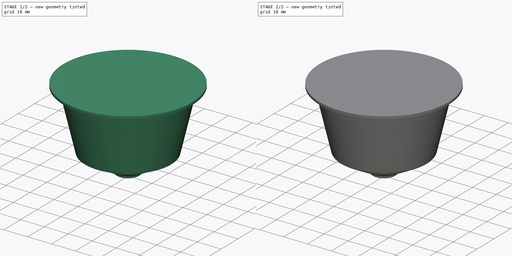
[diagram: build sequence overview — one tinted view per stage of 2, left to right]
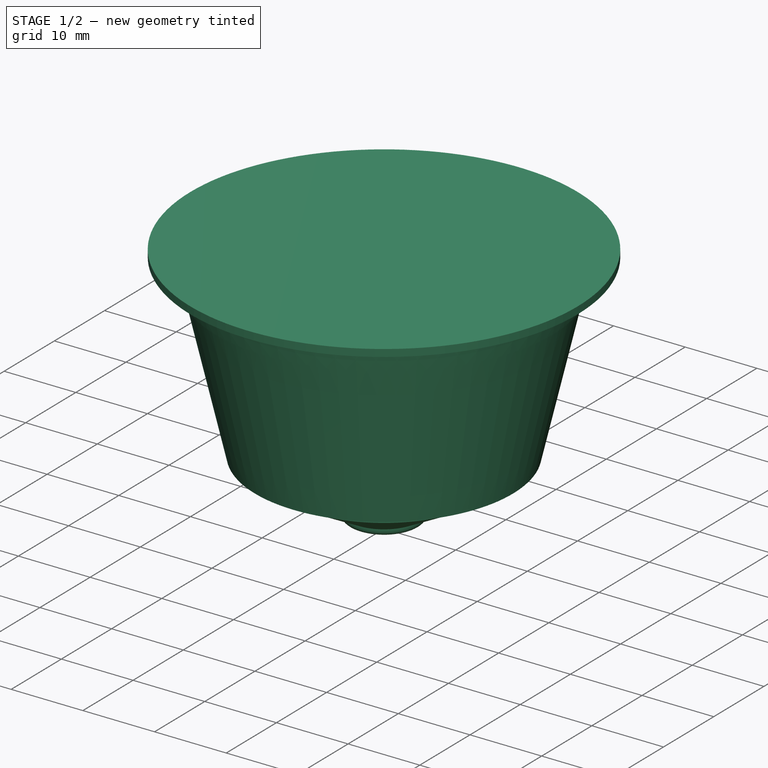
[diagram: stage 1 of 2 — iso view after this stage's code; geometry added in this stage tinted green]
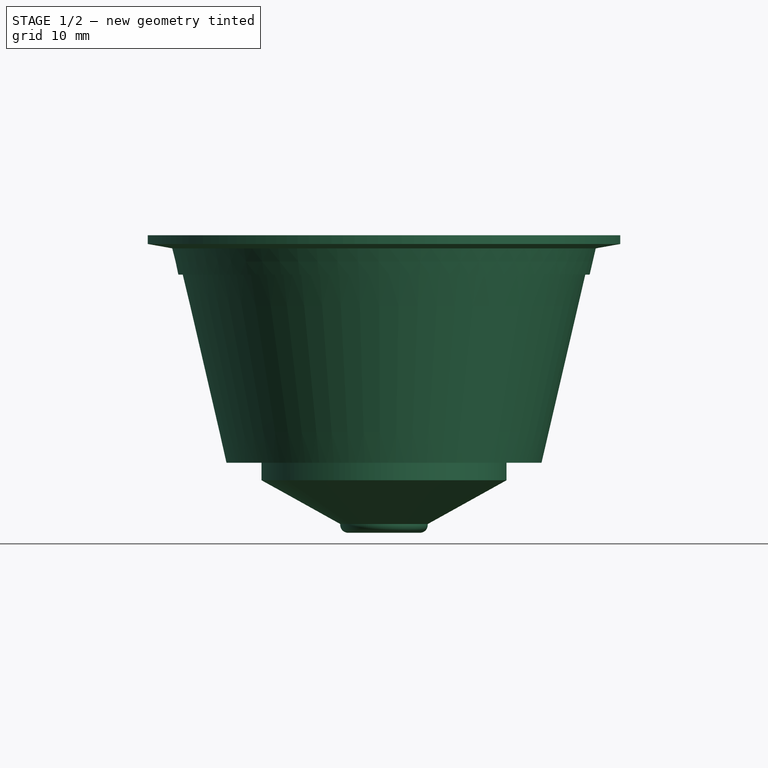
[diagram: stage 1 of 2 — front view after this stage's code; geometry added in this stage tinted green]
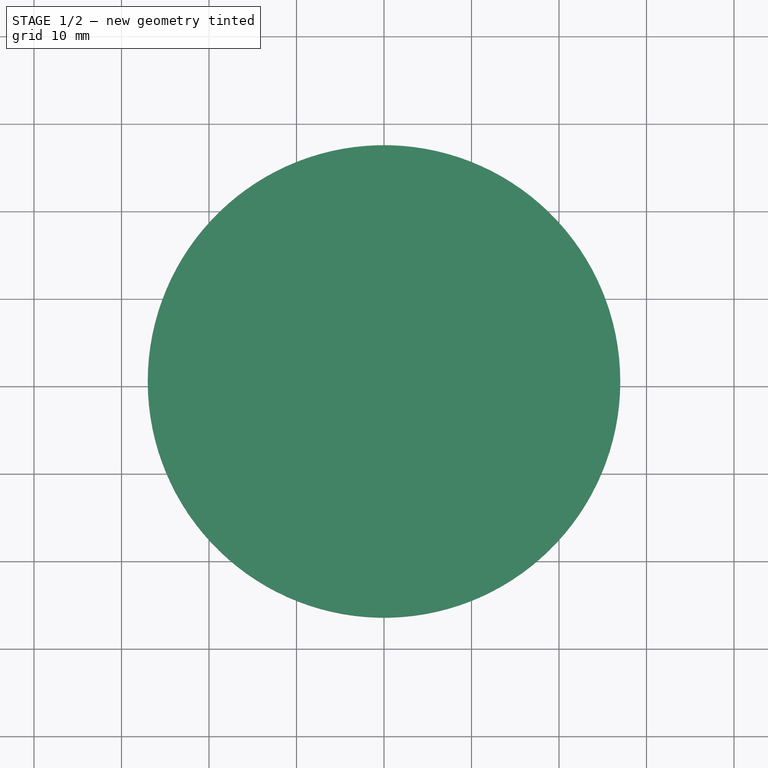
[diagram: stage 1 of 2 — top view after this stage's code; geometry added in this stage tinted green]
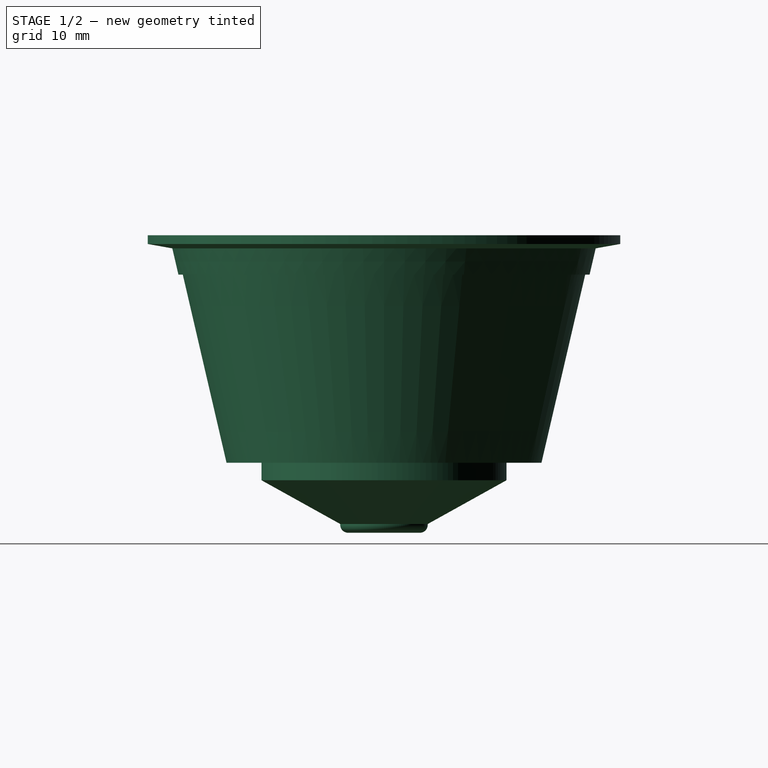
[diagram: stage 1 of 2 — right view after this stage's code; geometry added in this stage tinted green]
FCSTD DOCUMENT  (FreeCAD 0.14R3702 (Git))
Label: Dolce_Gusto_type_capsule
License: CC-BY 3.0
LicenseURL: http://creativecommons.org/licenses/by/3.0/
objects: PartDesign::Fillet×3, Sketcher::SketchObject×1, PartDesign::Revolution×1
note: 6 computed .brp shape members not serialized (recipe doc carries the construction recipe); baked Part::Feature solids carry a one-line shape summary decoded from their .brp

FEATURE [Sketcher::SketchObject] Sketch
  Placement = pos=(0,0,0) rot=(-1,0,0;4.71239rad)
  sketch-geometry (14):
    g0: LineSegment StartX=0 StartY=0 StartZ=0 EndX=2.5 EndY=0 EndZ=0
    g1: LineSegment StartX=2.5 StartY=0 StartZ=0 EndX=3 EndY=-2.5 EndZ=0
    g2: LineSegment StartX=3 StartY=-2.5 StartZ=0 EndX=5 EndY=-2.5 EndZ=0
    g3: LineSegment StartX=5 StartY=-2.5 StartZ=0 EndX=5 EndY=-1.5 EndZ=0
    g4: LineSegment StartX=5 StartY=-1.5 StartZ=0 EndX=14 EndY=3.5 EndZ=0
    g5: LineSegment StartX=14 StartY=3.5 StartZ=0 EndX=14 EndY=5.5 EndZ=0
    g6: LineSegment StartX=14 StartY=5.5 StartZ=0 EndX=18 EndY=5.5 EndZ=0
    g7: LineSegment StartX=18 StartY=5.5 StartZ=0 EndX=23 EndY=27 EndZ=0
    g8: LineSegment StartX=23 StartY=27 StartZ=0 EndX=23.5 EndY=27 EndZ=0
    g9: LineSegment StartX=23.5 StartY=27 StartZ=0 EndX=24.1977 EndY=30 EndZ=0
    g10: LineSegment StartX=24.1977 StartY=30 StartZ=0 EndX=27 EndY=30.5 EndZ=0
    g11: LineSegment StartX=27 StartY=30.5 StartZ=0 EndX=27 EndY=31.5 EndZ=0
    g12: LineSegment StartX=27 StartY=31.5 StartZ=0 EndX=0 EndY=31.5 EndZ=0
    g13: LineSegment StartX=0 StartY=31.5 StartZ=0 EndX=0 EndY=0 EndZ=0
  constraints (41):
    c: Coincident(g0,g-1)
    c: Horizontal(g0)
    c: Coincident(g0,g1)
    c: Coincident(g1,g2)
    c: Horizontal(g2)
    c: Coincident(g2,g3)
    c: Coincident(g3,g4)
    c: Coincident(g4,g5)
    c: Vertical(g5)
    c: Coincident(g5,g6)
    c: Horizontal(g6)
    c: Coincident(g6,g7)
    c: Coincident(g7,g8)
    c: Horizontal(g8)
    c: Coincident(g8,g9)
    c: Coincident(g9,g10)
    c: Coincident(g10,g11)
    c: Coincident(g11,g12)
    c: PointOnObject(g12,g-2)
    c: Horizontal(g12)
    c: Coincident(g12,g13)
    c: Coincident(g13,g-1)
    c: DistanceX(g0) = 2.5
    c: DistanceX(g-1,g1) = 3
    c: DistanceY(g-1,g1) = -2.5
    c: DistanceX(g2) = 2
    c: DistanceY(g2,g3) = 1
    c: Vertical(g3)
    c: DistanceX(g-1,g4) = 14
    c: DistanceY(g3,g4) = 5
    c: DistanceY(g5) = 2
    c: DistanceX(g6) = 4
    c: DistanceX(g-1,g7) = 23
    c: DistanceX(g-1,g8) = 23.5
    c: Vertical(g11)
    c: DistanceY(g11) = 1
    c: DistanceX(g12) = -27
    c: Parallel(g9,g7)
    c: DistanceY(g1,g12) = 34
    c: DistanceY(g9,g10) = 0.5
    c: DistanceY(g8,g9) = 3
FEATURE [PartDesign::Revolution] Revolution
  Angle = 360
  Axis = (0,0,1)
  Base = (0,0,0)
  Placement = pos=(0,0,0) rot=(-1,0,0;4.71239rad)
  ReferenceAxis = -> Sketch [V_Axis]
  Reversed = true
  Sketch = -> Sketch
FEATURE [PartDesign::Fillet] Fillet
  Base = -> Revolution [Edge2,Edge4]
  Placement = pos=(0,0,0) rot=(-1,0,0;4.71239rad)
  Radius = 0.9
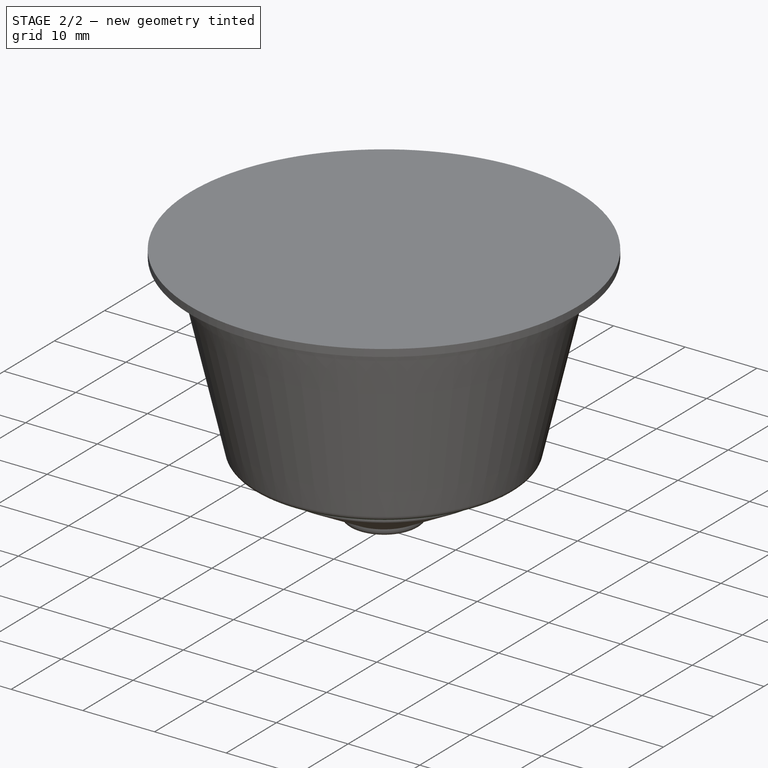
[diagram: stage 2 of 2 — iso view after this stage's code; geometry added in this stage tinted green]
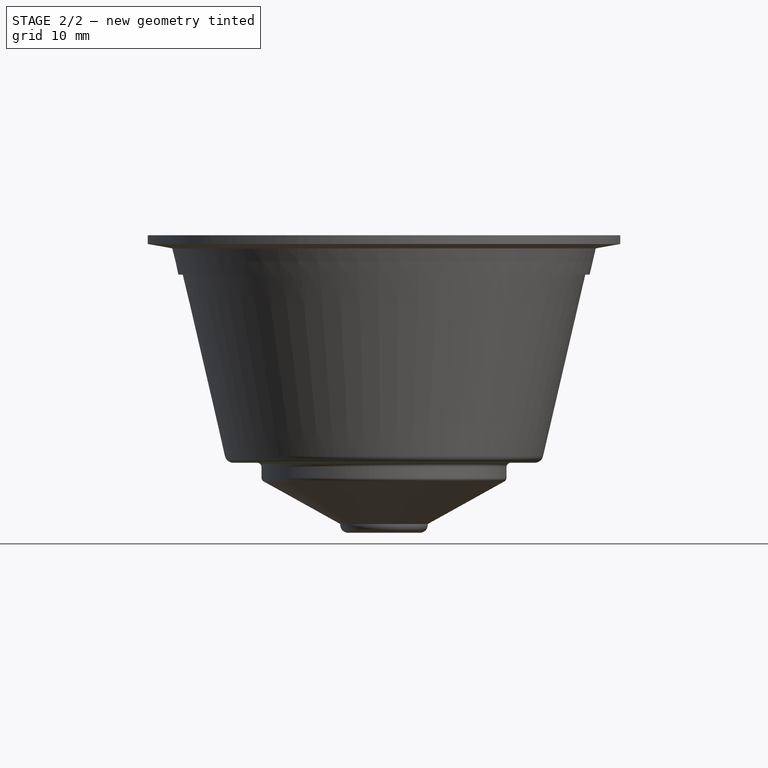
[diagram: stage 2 of 2 — front view after this stage's code; geometry added in this stage tinted green]
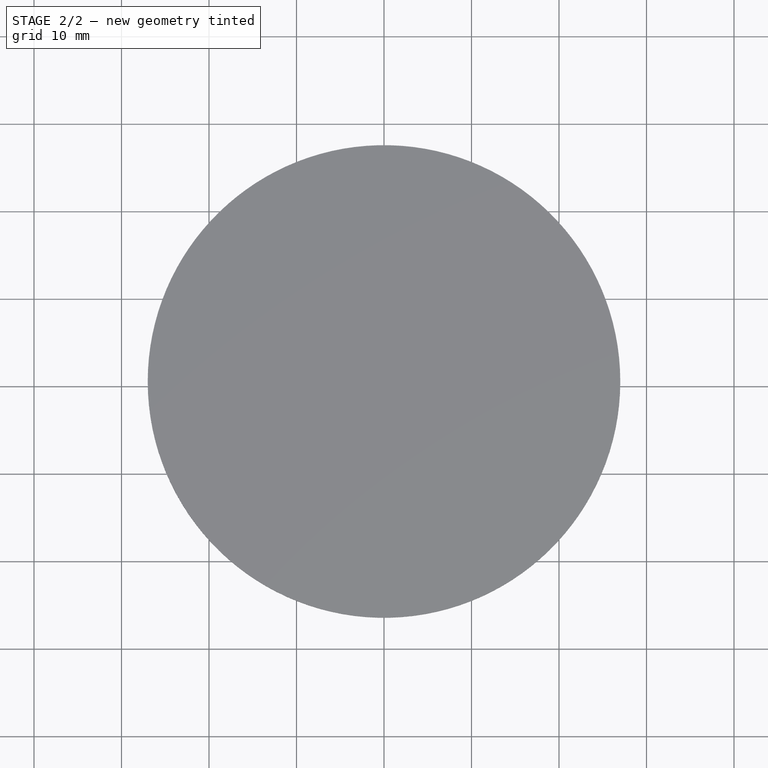
[diagram: stage 2 of 2 — top view after this stage's code; geometry added in this stage tinted green]
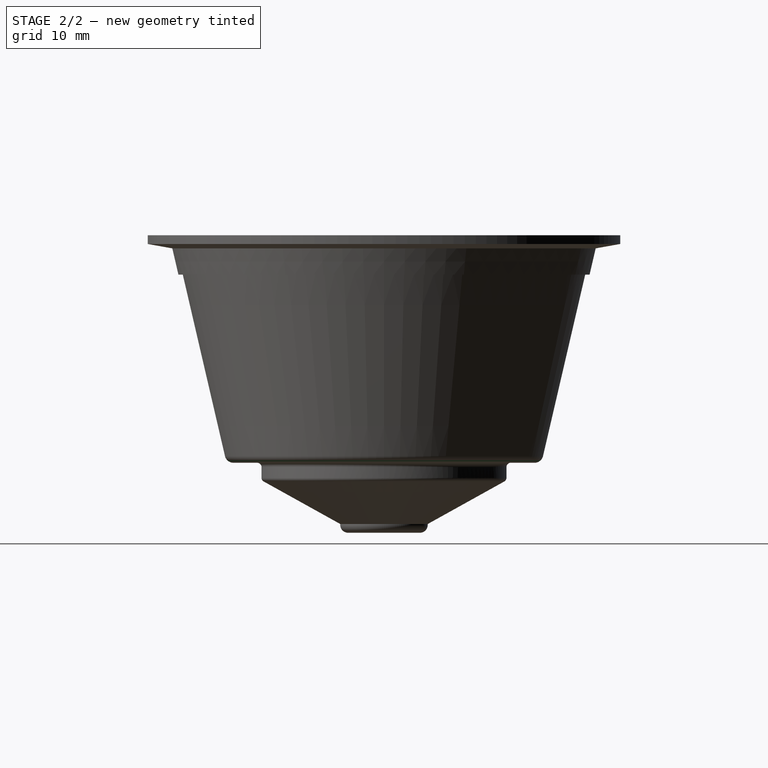
[diagram: stage 2 of 2 — right view after this stage's code; geometry added in this stage tinted green]
FEATURE [PartDesign::Fillet] Fillet001
  Base = -> Fillet [Edge15]
  Placement = pos=(0,0,0) rot=(-1,0,0;4.71239rad)
  Radius = 1
FEATURE [PartDesign::Fillet] Fillet002
  Base = -> Fillet001 [Edge5,Edge2]
  Placement = pos=(0,0,0) rot=(-1,0,0;4.71239rad)
  Radius = 0.5
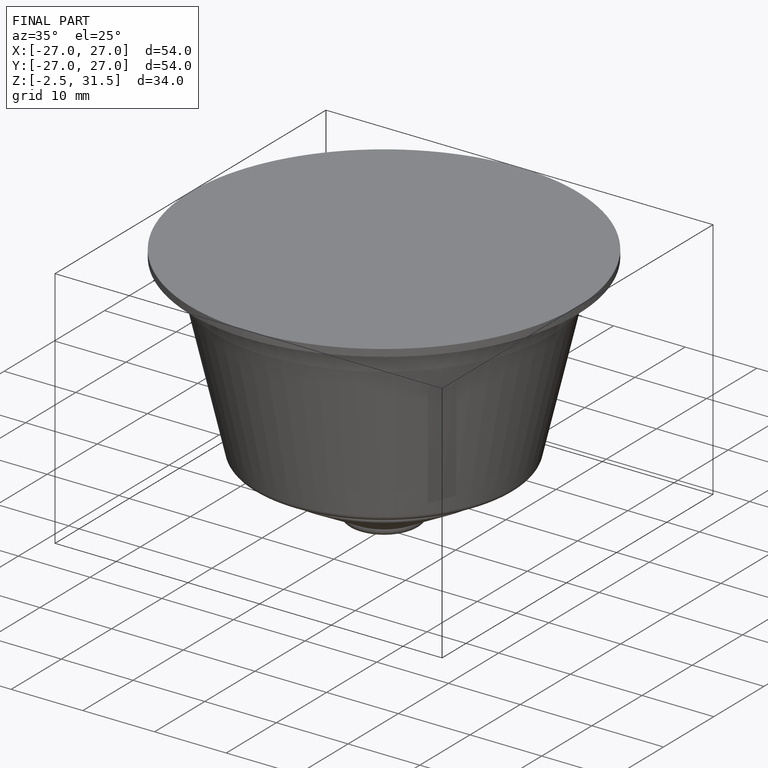
[diagram: finished part — iso view with bounding-box wireframe]
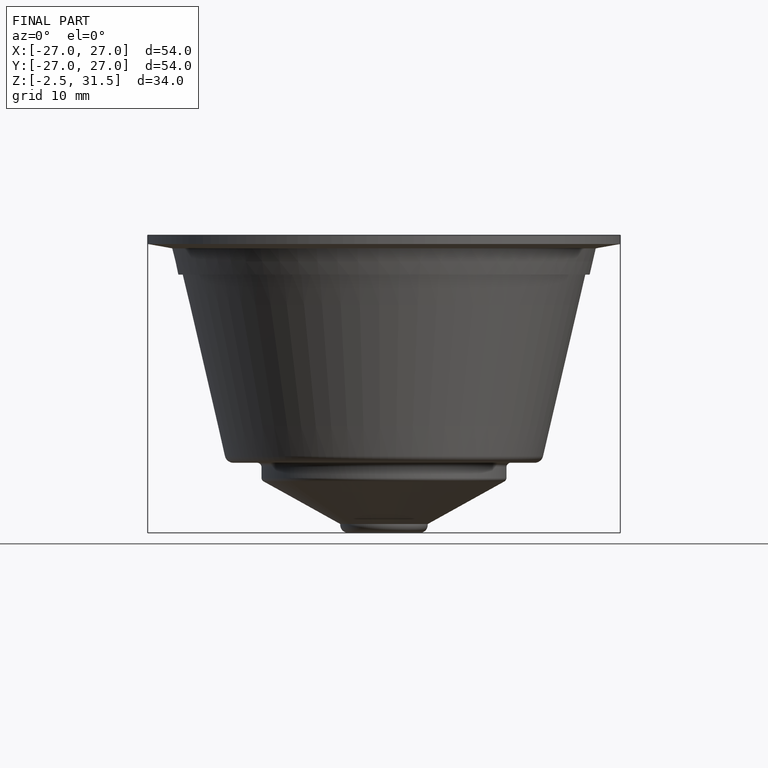
[diagram: finished part — front view with bounding-box wireframe]
